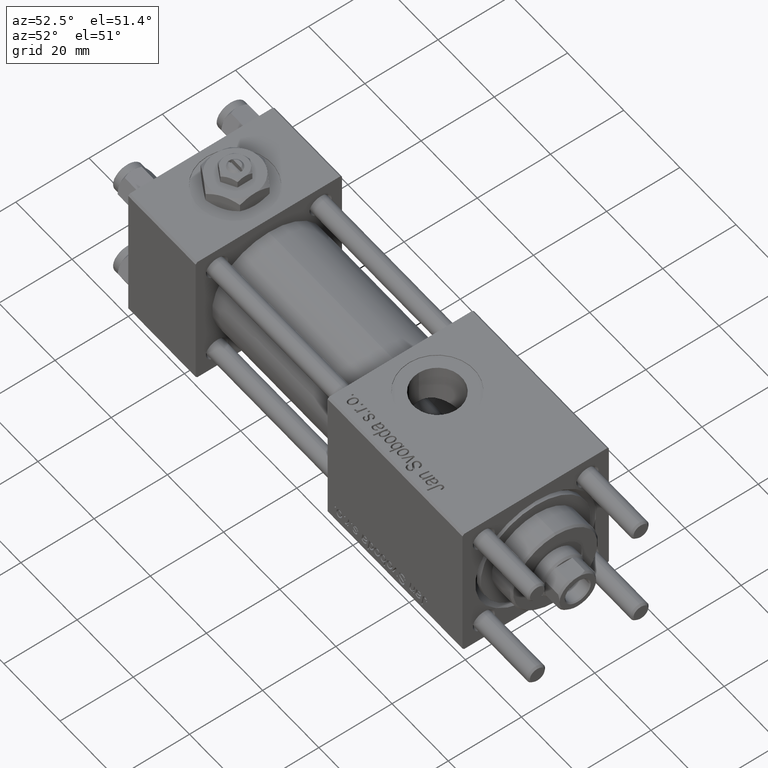
[diagram: clean part render]
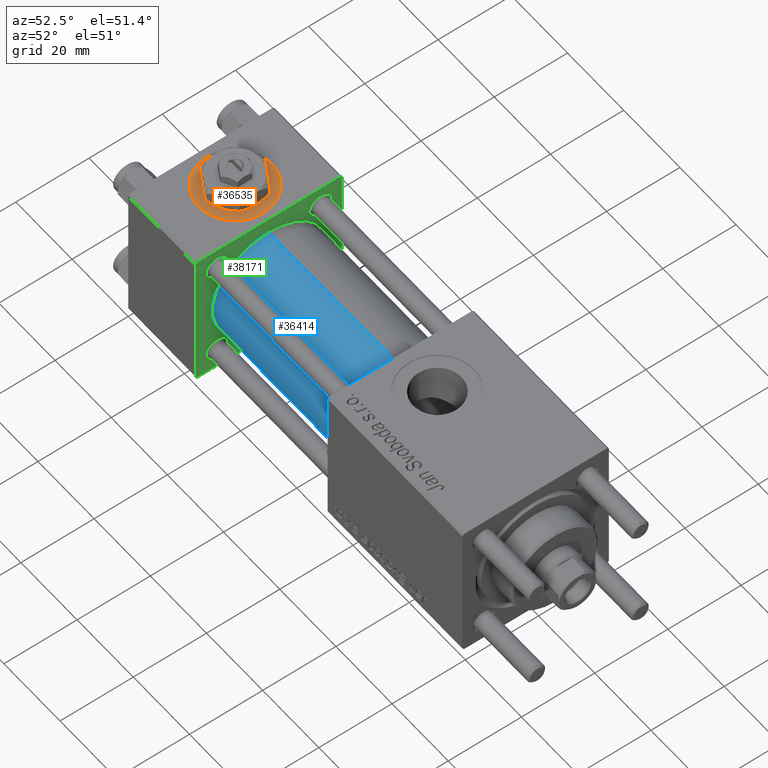
[diagram: same view with three faces highlighted in distinct colors, each labeled with its STEP entity id]
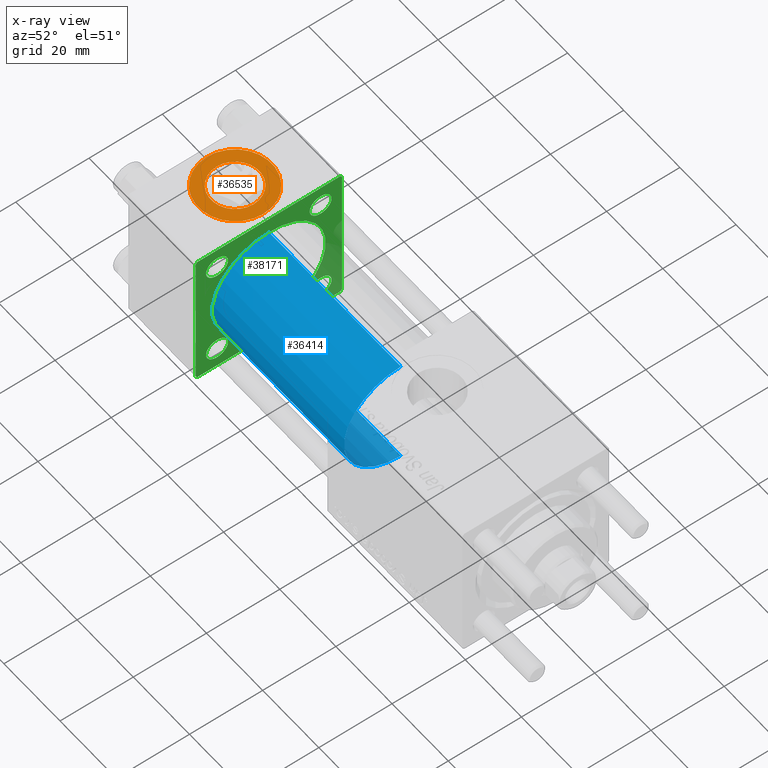
[diagram: x-ray of the same camera — body ghosted, the three highlighted faces saturated]
A machine part, auxiliary view with three faces highlighted in distinct colors.
The next image is the same camera in x-ray (body ghosted, the three faces saturated) — at least one of them is partly hidden behind the body in this view.
Their STEP definitions:

[orange] entity #36535 — the highlighted planar face has unit normal (0, 0, 1).
#127 = PLANE ( 'NONE',  #52852 ) ;
#326 = DIRECTION ( 'NONE',  ( 0.000000000000000000, 0.000000000000000000, 1.000000000000000000 ) ) ;
#1026 = CARTESIAN_POINT ( 'NONE',  ( 18.57999999999999829, 1.540743955509788682E-30, 19.79999999999999716 ) ) ;
#2107 = VERTEX_POINT ( 'NONE', #51533 ) ;
#9107 = DIRECTION ( 'NONE',  ( 0.000000000000000000, 0.000000000000000000, 1.000000000000000000 ) ) ;
#9878 = EDGE_CURVE ( 'NONE', #10703, #35123, #38457, .T. ) ;
#10703 = VERTEX_POINT ( 'NONE', #23455 ) ;
#12154 = CIRCLE ( 'NONE', #19691, 9.999999999999998224 ) ;
#12621 = EDGE_CURVE ( 'NONE', #35123, #10703, #12154, .T. ) ;
#13296 = CIRCLE ( 'NONE', #16113, 6.579999999999999183 ) ;
#13746 = DIRECTION ( 'NONE',  ( 1.000000000000000000, 0.000000000000000000, -0.000000000000000000 ) ) ;
#16113 = AXIS2_PLACEMENT_3D ( 'NONE', #49301, #9107, #17692 ) ;
#16720 = FACE_OUTER_BOUND ( 'NONE', #47626, .T. ) ;
#17692 = DIRECTION ( 'NONE',  ( 1.000000000000000000, 0.000000000000000000, 0.000000000000000000 ) ) ;
#19691 = AXIS2_PLACEMENT_3D ( 'NONE', #20430, #43467, #43758 ) ;
#20430 = CARTESIAN_POINT ( 'NONE',  ( 12.00000000000000000, 1.540743955509788682E-30, 19.79999999999999716 ) ) ;
#21149 = FACE_BOUND ( 'NONE', #48799, .T. ) ;
#21250 = CIRCLE ( 'NONE', #37274, 6.579999999999999183 ) ;
#23455 = CARTESIAN_POINT ( 'NONE',  ( 22.00000000000000000, 1.540743955509788682E-30, 19.79999999999999716 ) ) ;
#23608 = ORIENTED_EDGE ( 'NONE', *, *, #12621, .T. ) ;
#28511 = DIRECTION ( 'NONE',  ( 0.000000000000000000, 0.000000000000000000, 1.000000000000000000 ) ) ;
#30826 = ORIENTED_EDGE ( 'NONE', *, *, #38467, .F. ) ;
#31465 = DIRECTION ( 'NONE',  ( 0.000000000000000000, 0.000000000000000000, 1.000000000000000000 ) ) ;
#33246 = DIRECTION ( 'NONE',  ( 1.000000000000000000, 0.000000000000000000, 0.000000000000000000 ) ) ;
#35123 = VERTEX_POINT ( 'NONE', #39978 ) ;
#36535 = ADVANCED_FACE ( 'NONE', ( #21149, #16720 ), #127, .T. ) ;
#36946 = ORIENTED_EDGE ( 'NONE', *, *, #9878, .T. ) ;
#37274 = AXIS2_PLACEMENT_3D ( 'NONE', #51845, #28511, #33246 ) ;
#38457 = CIRCLE ( 'NONE', #43173, 9.999999999999998224 ) ;
#38467 = EDGE_CURVE ( 'NONE', #38975, #2107, #13296, .T. ) ;
#38975 = VERTEX_POINT ( 'NONE', #1026 ) ;
#39978 = CARTESIAN_POINT ( 'NONE',  ( 2.000000000000003553, 1.224646799147354440E-15, 19.79999999999999716 ) ) ;
#41112 = CARTESIAN_POINT ( 'NONE',  ( 12.00000000000000000, 1.540743955509788682E-30, 19.79999999999999716 ) ) ;
#41971 = ORIENTED_EDGE ( 'NONE', *, *, #51109, .F. ) ;
#43173 = AXIS2_PLACEMENT_3D ( 'NONE', #41112, #326, #54407 ) ;
#43467 = DIRECTION ( 'NONE',  ( 0.000000000000000000, 0.000000000000000000, 1.000000000000000000 ) ) ;
#43758 = DIRECTION ( 'NONE',  ( 1.000000000000000000, 0.000000000000000000, 0.000000000000000000 ) ) ;
#47626 = EDGE_LOOP ( 'NONE', ( #36946, #23608 ) ) ;
#48799 = EDGE_LOOP ( 'NONE', ( #30826, #41971 ) ) ;
#49301 = CARTESIAN_POINT ( 'NONE',  ( 12.00000000000000000, 1.540743955509788682E-30, 19.79999999999999716 ) ) ;
#51109 = EDGE_CURVE ( 'NONE', #2107, #38975, #21250, .T. ) ;
#51533 = CARTESIAN_POINT ( 'NONE',  ( 5.420000000000000817, 8.058175938389596335E-16, 19.79999999999999716 ) ) ;
#51845 = CARTESIAN_POINT ( 'NONE',  ( 12.00000000000000000, 1.540743955509788682E-30, 19.79999999999999716 ) ) ;
#52852 = AXIS2_PLACEMENT_3D ( 'NONE', #58072, #31465, #13746 ) ;
#54407 = DIRECTION ( 'NONE',  ( 1.000000000000000000, 0.000000000000000000, 0.000000000000000000 ) ) ;
#58072 = CARTESIAN_POINT ( 'NONE',  ( 12.00000000000000000, 1.540743955509788682E-30, 19.79999999999999716 ) ) ;

[blue] entity #36414 — the highlighted cylindrical surface (partial cylindrical patch) has radius 15.5 mm, axis along (-1, -0, -0).
#1092 = CARTESIAN_POINT ( 'NONE',  ( 71.00000000000001421, -7.038826752868131828E-16, -15.50000000000000000 ) ) ;
#2046 = DIRECTION ( 'NONE',  ( 0.000000000000000000, 0.000000000000000000, 1.000000000000000000 ) ) ;
#2467 = ORIENTED_EDGE ( 'NONE', *, *, #12090, .T. ) ;
#7223 = EDGE_CURVE ( 'NONE', #55619, #31811, #44159, .T. ) ;
#9187 = LINE ( 'NONE', #36082, #21613 ) ;
#12090 = EDGE_CURVE ( 'NONE', #51923, #55619, #33368, .T. ) ;
#13070 = VERTEX_POINT ( 'NONE', #1092 ) ;
#13218 = CARTESIAN_POINT ( 'NONE',  ( 71.00000000000001421, -2.602085213965210642E-15, 15.50000000000000000 ) ) ;
#16715 = AXIS2_PLACEMENT_3D ( 'NONE', #33452, #55318, #24857 ) ;
#17710 = ORIENTED_EDGE ( 'NONE', *, *, #29499, .F. ) ;
#18688 = AXIS2_PLACEMENT_3D ( 'NONE', #55832, #24204, #2046 ) ;
#19109 = CYLINDRICAL_SURFACE ( 'NONE', #21737, 15.50000000000000000 ) ;
#21613 = VECTOR ( 'NONE', #45228, 1000.000000000000000 ) ;
#21737 = AXIS2_PLACEMENT_3D ( 'NONE', #50428, #28254, #36843 ) ;
#23343 = EDGE_CURVE ( 'NONE', #51923, #13070, #46887, .T. ) ;
#24194 = DIRECTION ( 'NONE',  ( -1.000000000000000000, -0.000000000000000000, -0.000000000000000000 ) ) ;
#24204 = DIRECTION ( 'NONE',  ( 1.000000000000000000, 0.000000000000000000, 0.000000000000000000 ) ) ;
#24548 = CARTESIAN_POINT ( 'NONE',  ( 24.00000000000000000, -7.038826752868131828E-16, -15.50000000000000000 ) ) ;
#24857 = DIRECTION ( 'NONE',  ( 0.000000000000000000, 0.000000000000000000, -1.000000000000000000 ) ) ;
#28254 = DIRECTION ( 'NONE',  ( -1.000000000000000000, -0.000000000000000000, -0.000000000000000000 ) ) ;
#29499 = EDGE_CURVE ( 'NONE', #13070, #31811, #9187, .T. ) ;
#30078 = VECTOR ( 'NONE', #24194, 1000.000000000000000 ) ;
#31811 = VERTEX_POINT ( 'NONE', #24548 ) ;
#32426 = ORIENTED_EDGE ( 'NONE', *, *, #7223, .T. ) ;
#33075 = EDGE_LOOP ( 'NONE', ( #17710, #41673, #2467, #32426 ) ) ;
#33368 = LINE ( 'NONE', #47530, #30078 ) ;
#33452 = CARTESIAN_POINT ( 'NONE',  ( 71.00000000000001421, -2.602085213965210642E-15, 0.000000000000000000 ) ) ;
#36082 = CARTESIAN_POINT ( 'NONE',  ( 71.00000000000001421, -7.038826752868131828E-16, -15.50000000000000000 ) ) ;
#36414 = ADVANCED_FACE ( 'NONE', ( #56025 ), #19109, .T. ) ;
#36843 = DIRECTION ( 'NONE',  ( 0.000000000000000000, 0.000000000000000000, 1.000000000000000000 ) ) ;
#41673 = ORIENTED_EDGE ( 'NONE', *, *, #23343, .F. ) ;
#41932 = CARTESIAN_POINT ( 'NONE',  ( 24.00000000000000000, -2.602085213965210642E-15, 15.50000000000000000 ) ) ;
#44159 = CIRCLE ( 'NONE', #18688, 15.50000000000000000 ) ;
#45228 = DIRECTION ( 'NONE',  ( -1.000000000000000000, -0.000000000000000000, -0.000000000000000000 ) ) ;
#46887 = CIRCLE ( 'NONE', #16715, 15.50000000000000000 ) ;
#47530 = CARTESIAN_POINT ( 'NONE',  ( 71.00000000000001421, -2.602085213965210642E-15, 15.50000000000000000 ) ) ;
#50428 = CARTESIAN_POINT ( 'NONE',  ( 71.00000000000001421, -2.602085213965210642E-15, 0.000000000000000000 ) ) ;
#51923 = VERTEX_POINT ( 'NONE', #13218 ) ;
#55318 = DIRECTION ( 'NONE',  ( 1.000000000000000000, 0.000000000000000000, 0.000000000000000000 ) ) ;
#55619 = VERTEX_POINT ( 'NONE', #41932 ) ;
#55832 = CARTESIAN_POINT ( 'NONE',  ( 24.00000000000000000, -2.602085213965210642E-15, 0.000000000000000000 ) ) ;
#56025 = FACE_OUTER_BOUND ( 'NONE', #33075, .T. ) ;

[green] entity #38171 — the highlighted planar face has unit normal (-1, 0, 0).
#142 = FACE_BOUND ( 'NONE', #18018, .T. ) ;
#430 = FACE_BOUND ( 'NONE', #2052, .T. ) ;
#443 = DIRECTION ( 'NONE',  ( -1.000000000000000000, -0.000000000000000000, -0.000000000000000000 ) ) ;
#1358 = VERTEX_POINT ( 'NONE', #29881 ) ;
#1901 = EDGE_CURVE ( 'NONE', #7483, #45949, #31717, .T. ) ;
#2001 = DIRECTION ( 'NONE',  ( 0.000000000000000000, -1.000000000000000000, 1.734723475976807094E-16 ) ) ;
#2046 = DIRECTION ( 'NONE',  ( 0.000000000000000000, 0.000000000000000000, 1.000000000000000000 ) ) ;
#2052 = EDGE_LOOP ( 'NONE', ( #23462, #57023 ) ) ;
#2178 = ORIENTED_EDGE ( 'NONE', *, *, #46414, .T. ) ;
#2240 = VERTEX_POINT ( 'NONE', #19278 ) ;
#2266 = CARTESIAN_POINT ( 'NONE',  ( 24.00000000000000000, -14.14999999999999503, 11.15000000000000036 ) ) ;
#2406 = EDGE_CURVE ( 'NONE', #49902, #55693, #55616, .T. ) ;
#2693 = CARTESIAN_POINT ( 'NONE',  ( 24.00000000000000000, 14.14999999999999858, -14.15000000000000036 ) ) ;
#3581 = VECTOR ( 'NONE', #20575, 1000.000000000000000 ) ;
#3824 = CARTESIAN_POINT ( 'NONE',  ( 24.00000000000000000, -14.14999999999999503, 14.15000000000000391 ) ) ;
#3854 = DIRECTION ( 'NONE',  ( 0.000000000000000000, 0.000000000000000000, 1.000000000000000000 ) ) ;
#3938 = LINE ( 'NONE', #13406, #34038 ) ;
#4026 = DIRECTION ( 'NONE',  ( 0.000000000000000000, 0.000000000000000000, 1.000000000000000000 ) ) ;
#4182 = DIRECTION ( 'NONE',  ( 0.000000000000000000, 0.000000000000000000, 1.000000000000000000 ) ) ;
#4668 = DIRECTION ( 'NONE',  ( -0.000000000000000000, -0.7071067811865500152, -0.7071067811865451302 ) ) ;
#4682 = EDGE_CURVE ( 'NONE', #5137, #46523, #48806, .T. ) ;
#5137 = VERTEX_POINT ( 'NONE', #40603 ) ;
#5298 = AXIS2_PLACEMENT_3D ( 'NONE', #13350, #31361, #49381 ) ;
#5460 = VERTEX_POINT ( 'NONE', #36104 ) ;
#6228 = AXIS2_PLACEMENT_3D ( 'NONE', #30911, #22057, #39491 ) ;
#6439 = CIRCLE ( 'NONE', #39486, 2.999999999999976463 ) ;
#6604 = ORIENTED_EDGE ( 'NONE', *, *, #47153, .F. ) ;
#6768 = CARTESIAN_POINT ( 'NONE',  ( 24.00000000000000000, 20.00000000000000000, 19.49999999999999289 ) ) ;
#6816 = EDGE_CURVE ( 'NONE', #13376, #2240, #56914, .T. ) ;
#7114 = EDGE_CURVE ( 'NONE', #1358, #58374, #6439, .T. ) ;
#7223 = EDGE_CURVE ( 'NONE', #55619, #31811, #44159, .T. ) ;
#7483 = VERTEX_POINT ( 'NONE', #2266 ) ;
#9872 = EDGE_LOOP ( 'NONE', ( #13522, #49956 ) ) ;
#10507 = ORIENTED_EDGE ( 'NONE', *, *, #20425, .F. ) ;
#11171 = VERTEX_POINT ( 'NONE', #51657 ) ;
#11975 = ORIENTED_EDGE ( 'NONE', *, *, #7114, .T. ) ;
#12013 = CARTESIAN_POINT ( 'NONE',  ( 24.00000000000000000, -20.00000000000000000, -19.49999999999999645 ) ) ;
#12197 = CIRCLE ( 'NONE', #53703, 2.999999999999973355 ) ;
#13338 = AXIS2_PLACEMENT_3D ( 'NONE', #26766, #443, #4026 ) ;
#13350 = CARTESIAN_POINT ( 'NONE',  ( 24.00000000000000000, -2.602085213965210642E-15, 0.000000000000000000 ) ) ;
#13376 = VERTEX_POINT ( 'NONE', #12013 ) ;
#13406 = CARTESIAN_POINT ( 'NONE',  ( 24.00000000000000000, -20.00000000000000355, 19.99999999999998934 ) ) ;
#13522 = ORIENTED_EDGE ( 'NONE', *, *, #4682, .T. ) ;
#13531 = ORIENTED_EDGE ( 'NONE', *, *, #1901, .T. ) ;
#13586 = VECTOR ( 'NONE', #32844, 1000.000000000000000 ) ;
#14826 = CARTESIAN_POINT ( 'NONE',  ( 24.00000000000000000, 20.00000000000000000, 20.00000000000000000 ) ) ;
#15038 = EDGE_CURVE ( 'NONE', #11171, #20619, #58350, .T. ) ;
#16456 = ORIENTED_EDGE ( 'NONE', *, *, #6816, .T. ) ;
#16726 = DIRECTION ( 'NONE',  ( 0.000000000000000000, 0.000000000000000000, 1.000000000000000000 ) ) ;
#16964 = DIRECTION ( 'NONE',  ( 0.000000000000000000, 8.673617379884036705E-17, -1.000000000000000000 ) ) ;
#17036 = EDGE_CURVE ( 'NONE', #25688, #5460, #29417, .T. ) ;
#17603 = DIRECTION ( 'NONE',  ( -0.000000000000000000, 0.000000000000000000, 1.000000000000000000 ) ) ;
#17888 = VECTOR ( 'NONE', #49761, 1000.000000000000000 ) ;
#18018 = EDGE_LOOP ( 'NONE', ( #48017, #11975 ) ) ;
#18196 = FACE_OUTER_BOUND ( 'NONE', #28648, .T. ) ;
#18688 = AXIS2_PLACEMENT_3D ( 'NONE', #55832, #24204, #2046 ) ;
#19180 = CIRCLE ( 'NONE', #26725, 2.999999999999976463 ) ;
#19278 = CARTESIAN_POINT ( 'NONE',  ( 24.00000000000000000, -19.50000000000000711, -20.00000000000000000 ) ) ;
#19978 = AXIS2_PLACEMENT_3D ( 'NONE', #56321, #57192, #16726 ) ;
#20425 = EDGE_CURVE ( 'NONE', #31811, #55619, #30799, .T. ) ;
#20575 = DIRECTION ( 'NONE',  ( 0.000000000000000000, 0.7071067811865401342, -0.7071067811865549002 ) ) ;
#20619 = VERTEX_POINT ( 'NONE', #51411 ) ;
#20735 = DIRECTION ( 'NONE',  ( -1.000000000000000000, -0.000000000000000000, -0.000000000000000000 ) ) ;
#20832 = AXIS2_PLACEMENT_3D ( 'NONE', #22902, #36205, #17603 ) ;
#20904 = ORIENTED_EDGE ( 'NONE', *, *, #7223, .F. ) ;
#21899 = DIRECTION ( 'NONE',  ( -1.000000000000000000, -0.000000000000000000, -0.000000000000000000 ) ) ;
#22057 = DIRECTION ( 'NONE',  ( -1.000000000000000000, -0.000000000000000000, -0.000000000000000000 ) ) ;
#22084 = CARTESIAN_POINT ( 'NONE',  ( 24.00000000000000000, 14.14999999999999858, -17.14999999999997726 ) ) ;
#22814 = CIRCLE ( 'NONE', #48276, 3.000000000000004441 ) ;
#22902 = CARTESIAN_POINT ( 'NONE',  ( 24.00000000000000000, 0.000000000000000000, 0.000000000000000000 ) ) ;
#23462 = ORIENTED_EDGE ( 'NONE', *, *, #17036, .T. ) ;
#23515 = ORIENTED_EDGE ( 'NONE', *, *, #42940, .F. ) ;
#24204 = DIRECTION ( 'NONE',  ( 1.000000000000000000, 0.000000000000000000, 0.000000000000000000 ) ) ;
#24548 = CARTESIAN_POINT ( 'NONE',  ( 24.00000000000000000, -7.038826752868131828E-16, -15.50000000000000000 ) ) ;
#24763 = CARTESIAN_POINT ( 'NONE',  ( 24.00000000000000000, -20.00000000000000355, 19.49999999999998224 ) ) ;
#24777 = VECTOR ( 'NONE', #2001, 1000.000000000000000 ) ;
#24861 = DIRECTION ( 'NONE',  ( 0.000000000000000000, -0.7071067811865425767, 0.7071067811865525687 ) ) ;
#25688 = VERTEX_POINT ( 'NONE', #26232 ) ;
#26232 = CARTESIAN_POINT ( 'NONE',  ( 24.00000000000000000, -14.14999999999999503, -17.15000000000000924 ) ) ;
#26725 = AXIS2_PLACEMENT_3D ( 'NONE', #31333, #21899, #3854 ) ;
#26752 = FACE_BOUND ( 'NONE', #56560, .T. ) ;
#26766 = CARTESIAN_POINT ( 'NONE',  ( 24.00000000000000000, -14.14999999999999503, -14.15000000000000391 ) ) ;
#27449 = ORIENTED_EDGE ( 'NONE', *, *, #38226, .T. ) ;
#28648 = EDGE_LOOP ( 'NONE', ( #23515, #50705, #6604, #48182, #2178, #35327, #27449, #16456 ) ) ;
#28724 = CARTESIAN_POINT ( 'NONE',  ( 24.00000000000000000, 19.50000000000000000, 20.00000000000000000 ) ) ;
#29021 = EDGE_CURVE ( 'NONE', #46523, #5137, #12197, .T. ) ;
#29417 = CIRCLE ( 'NONE', #19978, 3.000000000000004441 ) ;
#29444 = CARTESIAN_POINT ( 'NONE',  ( 24.00000000000000000, -19.50000000000000711, -20.00000000000000000 ) ) ;
#29881 = CARTESIAN_POINT ( 'NONE',  ( 24.00000000000000000, 14.14999999999999858, -11.15000000000002700 ) ) ;
#30680 = CARTESIAN_POINT ( 'NONE',  ( 24.00000000000000000, 19.50000000000000000, 20.00000000000000000 ) ) ;
#30799 = CIRCLE ( 'NONE', #5298, 15.50000000000000000 ) ;
#30911 = CARTESIAN_POINT ( 'NONE',  ( 24.00000000000000000, -14.14999999999999503, 14.15000000000000391 ) ) ;
#31333 = CARTESIAN_POINT ( 'NONE',  ( 24.00000000000000000, 14.14999999999999858, -14.15000000000000036 ) ) ;
#31361 = DIRECTION ( 'NONE',  ( 1.000000000000000000, 0.000000000000000000, 0.000000000000000000 ) ) ;
#31717 = CIRCLE ( 'NONE', #6228, 3.000000000000004441 ) ;
#31738 = CARTESIAN_POINT ( 'NONE',  ( 24.00000000000000000, 20.00000000000000000, -19.50000000000002132 ) ) ;
#31811 = VERTEX_POINT ( 'NONE', #24548 ) ;
#32118 = CARTESIAN_POINT ( 'NONE',  ( 24.00000000000000000, 14.14999999999999858, 17.14999999999997726 ) ) ;
#32844 = DIRECTION ( 'NONE',  ( 0.000000000000000000, 0.000000000000000000, -1.000000000000000000 ) ) ;
#33333 = LINE ( 'NONE', #51354, #24777 ) ;
#34038 = VECTOR ( 'NONE', #16964, 1000.000000000000000 ) ;
#34284 = VECTOR ( 'NONE', #57255, 1000.000000000000000 ) ;
#35281 = CARTESIAN_POINT ( 'NONE',  ( 24.00000000000000000, 14.14999999999999858, 14.15000000000000036 ) ) ;
#35327 = ORIENTED_EDGE ( 'NONE', *, *, #38367, .T. ) ;
#35587 = CARTESIAN_POINT ( 'NONE',  ( 24.00000000000000000, -14.14999999999999503, 17.15000000000000924 ) ) ;
#35710 = CARTESIAN_POINT ( 'NONE',  ( 24.00000000000000000, -20.00000000000000355, 19.49999999999998224 ) ) ;
#36096 = VERTEX_POINT ( 'NONE', #24763 ) ;
#36104 = CARTESIAN_POINT ( 'NONE',  ( 24.00000000000000000, -14.14999999999999503, -11.15000000000000036 ) ) ;
#36205 = DIRECTION ( 'NONE',  ( -1.000000000000000000, 0.000000000000000000, -0.000000000000000000 ) ) ;
#36492 = FACE_BOUND ( 'NONE', #56711, .T. ) ;
#38171 = ADVANCED_FACE ( 'NONE', ( #430, #142, #36492, #40064, #26752, #18196 ), #58084, .F. ) ;
#38226 = EDGE_CURVE ( 'NONE', #36096, #13376, #3938, .T. ) ;
#38367 = EDGE_CURVE ( 'NONE', #56056, #36096, #50174, .T. ) ;
#38750 = DIRECTION ( 'NONE',  ( 0.000000000000000000, 0.000000000000000000, 1.000000000000000000 ) ) ;
#38797 = CIRCLE ( 'NONE', #13338, 3.000000000000004441 ) ;
#38813 = EDGE_CURVE ( 'NONE', #5460, #25688, #38797, .T. ) ;
#39229 = LINE ( 'NONE', #52242, #34284 ) ;
#39486 = AXIS2_PLACEMENT_3D ( 'NONE', #2693, #20735, #38750 ) ;
#39491 = DIRECTION ( 'NONE',  ( 0.000000000000000000, 0.000000000000000000, 1.000000000000000000 ) ) ;
#40064 = FACE_BOUND ( 'NONE', #9872, .T. ) ;
#40291 = DIRECTION ( 'NONE',  ( 0.000000000000000000, 0.000000000000000000, 1.000000000000000000 ) ) ;
#40514 = EDGE_CURVE ( 'NONE', #45949, #7483, #22814, .T. ) ;
#40603 = CARTESIAN_POINT ( 'NONE',  ( 24.00000000000000000, 14.14999999999999858, 11.15000000000002700 ) ) ;
#41932 = CARTESIAN_POINT ( 'NONE',  ( 24.00000000000000000, -2.602085213965210642E-15, 15.50000000000000000 ) ) ;
#42940 = EDGE_CURVE ( 'NONE', #11171, #2240, #33333, .T. ) ;
#43473 = VECTOR ( 'NONE', #4668, 1000.000000000000114 ) ;
#44159 = CIRCLE ( 'NONE', #18688, 15.50000000000000000 ) ;
#44301 = DIRECTION ( 'NONE',  ( -1.000000000000000000, -0.000000000000000000, -0.000000000000000000 ) ) ;
#44663 = DIRECTION ( 'NONE',  ( -1.000000000000000000, -0.000000000000000000, -0.000000000000000000 ) ) ;
#44986 = VECTOR ( 'NONE', #24861, 999.9999999999998863 ) ;
#45552 = LINE ( 'NONE', #14826, #13586 ) ;
#45562 = EDGE_CURVE ( 'NONE', #58374, #1358, #19180, .T. ) ;
#45949 = VERTEX_POINT ( 'NONE', #35587 ) ;
#46414 = EDGE_CURVE ( 'NONE', #55693, #56056, #39229, .T. ) ;
#46523 = VERTEX_POINT ( 'NONE', #32118 ) ;
#47153 = EDGE_CURVE ( 'NONE', #49902, #20619, #45552, .T. ) ;
#48017 = ORIENTED_EDGE ( 'NONE', *, *, #45562, .T. ) ;
#48182 = ORIENTED_EDGE ( 'NONE', *, *, #2406, .T. ) ;
#48276 = AXIS2_PLACEMENT_3D ( 'NONE', #3824, #44301, #53186 ) ;
#48806 = CIRCLE ( 'NONE', #56353, 2.999999999999973355 ) ;
#49381 = DIRECTION ( 'NONE',  ( 0.000000000000000000, 0.000000000000000000, 1.000000000000000000 ) ) ;
#49761 = DIRECTION ( 'NONE',  ( -0.000000000000000000, 0.7071067811865524577, 0.7071067811865426878 ) ) ;
#49902 = VERTEX_POINT ( 'NONE', #6768 ) ;
#49956 = ORIENTED_EDGE ( 'NONE', *, *, #29021, .T. ) ;
#50174 = LINE ( 'NONE', #35710, #43473 ) ;
#50705 = ORIENTED_EDGE ( 'NONE', *, *, #15038, .T. ) ;
#51354 = CARTESIAN_POINT ( 'NONE',  ( 24.00000000000000000, 20.00000000000000000, -20.00000000000000711 ) ) ;
#51411 = CARTESIAN_POINT ( 'NONE',  ( 24.00000000000000000, 20.00000000000000000, -19.50000000000002132 ) ) ;
#51657 = CARTESIAN_POINT ( 'NONE',  ( 24.00000000000000000, 19.50000000000000711, -20.00000000000000711 ) ) ;
#52242 = CARTESIAN_POINT ( 'NONE',  ( 24.00000000000000000, 20.00000000000000000, 20.00000000000000000 ) ) ;
#53186 = DIRECTION ( 'NONE',  ( 0.000000000000000000, 0.000000000000000000, 1.000000000000000000 ) ) ;
#53306 = DIRECTION ( 'NONE',  ( -1.000000000000000000, -0.000000000000000000, -0.000000000000000000 ) ) ;
#53703 = AXIS2_PLACEMENT_3D ( 'NONE', #35281, #53306, #40291 ) ;
#54693 = CARTESIAN_POINT ( 'NONE',  ( 24.00000000000000000, 14.14999999999999858, 14.15000000000000036 ) ) ;
#55616 = LINE ( 'NONE', #28724, #44986 ) ;
#55619 = VERTEX_POINT ( 'NONE', #41932 ) ;
#55693 = VERTEX_POINT ( 'NONE', #30680 ) ;
#55832 = CARTESIAN_POINT ( 'NONE',  ( 24.00000000000000000, -2.602085213965210642E-15, 0.000000000000000000 ) ) ;
#56056 = VERTEX_POINT ( 'NONE', #56909 ) ;
#56321 = CARTESIAN_POINT ( 'NONE',  ( 24.00000000000000000, -14.14999999999999503, -14.15000000000000391 ) ) ;
#56353 = AXIS2_PLACEMENT_3D ( 'NONE', #54693, #44663, #4182 ) ;
#56560 = EDGE_LOOP ( 'NONE', ( #20904, #10507 ) ) ;
#56711 = EDGE_LOOP ( 'NONE', ( #13531, #58073 ) ) ;
#56909 = CARTESIAN_POINT ( 'NONE',  ( 24.00000000000000000, -19.49999999999999289, 19.99999999999998934 ) ) ;
#56914 = LINE ( 'NONE', #29444, #3581 ) ;
#57023 = ORIENTED_EDGE ( 'NONE', *, *, #38813, .T. ) ;
#57192 = DIRECTION ( 'NONE',  ( -1.000000000000000000, -0.000000000000000000, -0.000000000000000000 ) ) ;
#57255 = DIRECTION ( 'NONE',  ( 0.000000000000000000, -1.000000000000000000, -2.602085213965210149E-16 ) ) ;
#58073 = ORIENTED_EDGE ( 'NONE', *, *, #40514, .T. ) ;
#58084 = PLANE ( 'NONE',  #20832 ) ;
#58350 = LINE ( 'NONE', #31738, #17888 ) ;
#58374 = VERTEX_POINT ( 'NONE', #22084 ) ;